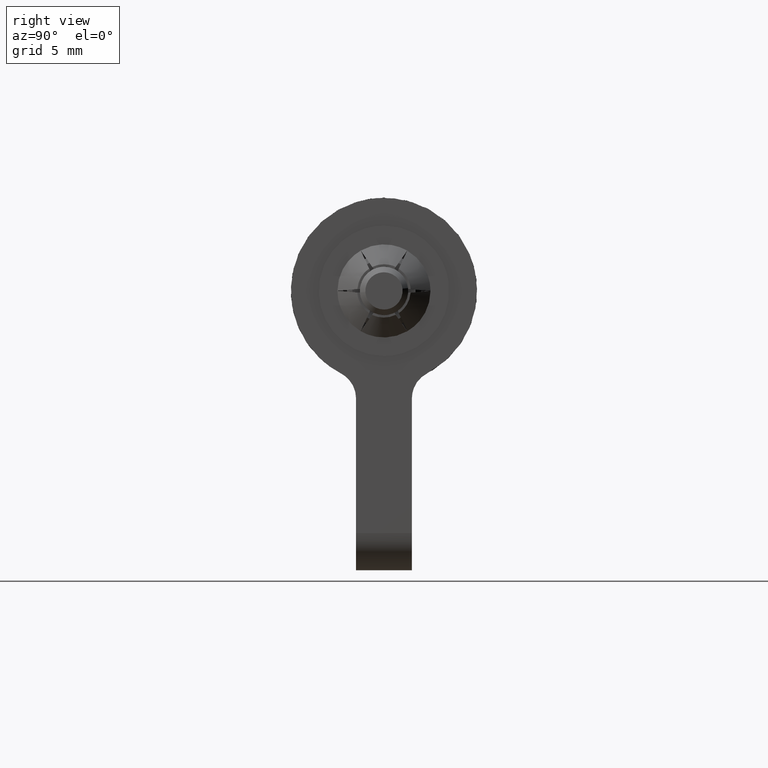
[diagram: clean part render]
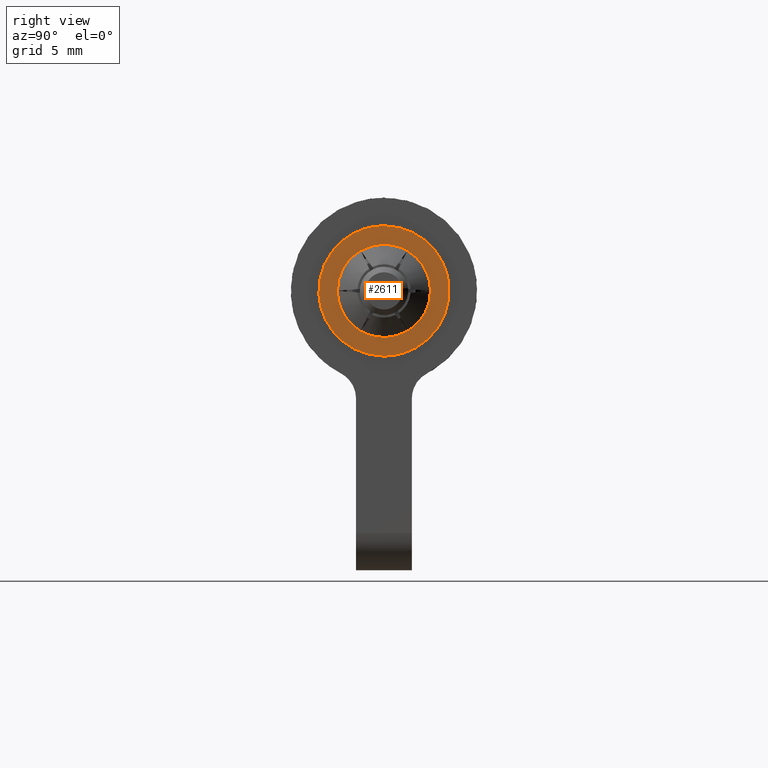
[diagram: same view with one face highlighted and labeled with its STEP entity id]
A machine part, right view. The second image highlights one B-rep face of the part: STEP entity #2611.
In plain terms, the highlighted face is a freeform B-spline surface patch.
Its self-contained STEP definition (entity closure, byte-faithful):
#1333=CARTESIAN_POINT('',(27.750000000000920,3.475533883492339,0.413115268025321));
#1334=VERTEX_POINT('',#1333);
#1335=CARTESIAN_POINT('',(27.750000000000000,0.0,-3.500000000000000));
#1336=VERTEX_POINT('',#1335);
#1337=CARTESIAN_POINT('',(27.750000000000924,3.475533883492339,0.413115268025321));
#1338=CARTESIAN_POINT('',(27.750000000000000,3.500000000000000,0.207282118077154));
#1339=CARTESIAN_POINT('',(27.750000000000000,3.500000000000000,0.0));
#1340=CARTESIAN_POINT('',(27.750000000000011,3.500000000000000,-3.500000000000000));
#1341=CARTESIAN_POINT('',(27.750000000000000,0.0,-3.500000000000000));
#1349=(BOUNDED_CURVE()B_SPLINE_CURVE(2,(#1337,#1338,#1339,#1340,#1341),.UNSPECIFIED.,.F.,.U.)B_SPLINE_CURVE_WITH_KNOTS((3,2,3),(0.229562694925705,0.250000000000000,0.500000000000000),.UNSPECIFIED.)CURVE()GEOMETRIC_REPRESENTATION_ITEM()RATIONAL_B_SPLINE_CURVE((0.956027188161125,0.976056207731668,1.0,0.707106781186547,1.0))REPRESENTATION_ITEM(''));
#1350=EDGE_CURVE('',#1334,#1336,#1349,.T.);
#1352=CARTESIAN_POINT('',(27.750000000000000,-3.493471794475018,-0.213669888396783));
#1353=VERTEX_POINT('',#1352);
#1354=CARTESIAN_POINT('',(27.750000000000000,0.0,-3.500000000000000));
#1355=CARTESIAN_POINT('',(27.750000000000004,-3.292471234123130,-3.500000000000000));
#1356=CARTESIAN_POINT('',(27.750000000000004,-3.493471794475018,-0.213669888396783));
#1364=(BOUNDED_CURVE()B_SPLINE_CURVE(2,(#1354,#1355,#1356),.UNSPECIFIED.,.F.,.U.)B_SPLINE_CURVE_WITH_KNOTS((3,3),(0.500000000000000,0.739332962239520),.UNSPECIFIED.)CURVE()GEOMETRIC_REPRESENTATION_ITEM()RATIONAL_B_SPLINE_CURVE((1.0,0.719603993286034,0.976072041667955))REPRESENTATION_ITEM(''));
#1365=EDGE_CURVE('',#1336,#1353,#1364,.T.);
#1432=CARTESIAN_POINT('',(27.750000000000000,0.0,3.500000000000000));
#1433=VERTEX_POINT('',#1432);
#1434=CARTESIAN_POINT('',(27.750000000000000,0.0,3.500000000000000));
#1435=CARTESIAN_POINT('',(27.749999999999996,3.108614942071727,3.500000000000000));
#1436=CARTESIAN_POINT('',(27.750000000000924,3.475533883492339,0.413115268025321));
#1444=(BOUNDED_CURVE()B_SPLINE_CURVE(2,(#1434,#1435,#1436),.UNSPECIFIED.,.F.,.U.)B_SPLINE_CURVE_WITH_KNOTS((3,3),(0.0,0.229562694925705),.UNSPECIFIED.)CURVE()GEOMETRIC_REPRESENTATION_ITEM()RATIONAL_B_SPLINE_CURVE((1.0,0.731050573454879,0.956027188161125))REPRESENTATION_ITEM(''));
#1445=EDGE_CURVE('',#1433,#1334,#1444,.T.);
#1479=CARTESIAN_POINT('',(27.750000000000011,-3.493471794475019,-0.213669888396783));
#1480=CARTESIAN_POINT('',(27.749999999999996,-3.500000000000000,-0.106934671569915));
#1481=CARTESIAN_POINT('',(27.750000000000000,-3.500000000000000,0.0));
#1482=CARTESIAN_POINT('',(27.750000000000011,-3.500000000000000,3.500000000000000));
#1483=CARTESIAN_POINT('',(27.750000000000000,0.0,3.500000000000000));
#1491=(BOUNDED_CURVE()B_SPLINE_CURVE(2,(#1479,#1480,#1481,#1482,#1483),.UNSPECIFIED.,.F.,.U.)B_SPLINE_CURVE_WITH_KNOTS((3,2,3),(0.739332962239520,0.750000000000000,1.0),.UNSPECIFIED.)CURVE()GEOMETRIC_REPRESENTATION_ITEM()RATIONAL_B_SPLINE_CURVE((0.976072041667955,0.987502787900514,1.0,0.707106781186547,1.0))REPRESENTATION_ITEM(''));
#1492=EDGE_CURVE('',#1353,#1433,#1491,.T.);
#1534=CARTESIAN_POINT('',(27.750000000000000,1.250000254032134,2.165063362795555));
#1535=VERTEX_POINT('',#1534);
#1648=CARTESIAN_POINT('',(27.750000000000000,2.500000000000000,1.530758E-016));
#1649=VERTEX_POINT('',#1648);
#1762=CARTESIAN_POINT('',(27.750000000000000,1.250000000000000,-2.165064000000100));
#1763=VERTEX_POINT('',#1762);
#1876=CARTESIAN_POINT('',(27.750000000000000,-1.250000000000000,-2.165064000000100));
#1877=VERTEX_POINT('',#1876);
#1990=CARTESIAN_POINT('',(27.750000000000000,-2.500000000000000,-1.530758E-016));
#1991=VERTEX_POINT('',#1990);
#2104=CARTESIAN_POINT('',(27.750000000000000,-1.250000000000000,2.165062999999905));
#2105=VERTEX_POINT('',#2104);
#2520=CARTESIAN_POINT('',(27.750000000000000,-3.849564799543584,-3.849649986432642));
#2521=CARTESIAN_POINT('',(27.750000000000000,-3.849564799543584,3.849650174187273));
#2522=CARTESIAN_POINT('',(27.750000000000000,3.849586328741277,-3.849649986432642));
#2523=CARTESIAN_POINT('',(27.750000000000000,3.849586328741277,3.849650174187273));
#2524=B_SPLINE_SURFACE_WITH_KNOTS('',1,1,((#2520,#2522),(#2521,#2523)),.UNSPECIFIED.,.F.,.F.,.U.,(2,2),(2,2),(0.0,7.699300160619915),(0.0,7.699151128284861),.UNSPECIFIED.);
#2525=ORIENTED_EDGE('',*,*,#1492,.F.);
#2526=ORIENTED_EDGE('',*,*,#1365,.F.);
#2527=ORIENTED_EDGE('',*,*,#1350,.F.);
#2528=ORIENTED_EDGE('',*,*,#1445,.F.);
#2529=EDGE_LOOP('',(#2525,#2526,#2527,#2528));
#2530=FACE_OUTER_BOUND('',#2529,.T.);
#2531=CARTESIAN_POINT('',(27.750000000000000,-1.250000000000000,2.165062999999905));
#2532=CARTESIAN_POINT('',(27.749999999999996,0.000000022285957,2.886751528635389));
#2533=CARTESIAN_POINT('',(27.750000000000000,1.250000254032133,2.165063362795557));
#2541=(BOUNDED_CURVE()B_SPLINE_CURVE(2,(#2531,#2532,#2533),.UNSPECIFIED.,.F.,.U.)CURVE()GEOMETRIC_REPRESENTATION_ITEM()QUASI_UNIFORM_CURVE()RATIONAL_B_SPLINE_CURVE((1.0,0.866025348978264,1.0))REPRESENTATION_ITEM(''));
#2542=EDGE_CURVE('',#2105,#1535,#2541,.T.);
#2543=ORIENTED_EDGE('',*,*,#2542,.T.);
#2544=CARTESIAN_POINT('',(27.750000000000000,1.250000254032134,2.165063362795556));
#2545=CARTESIAN_POINT('',(27.749999999999996,2.500000000000000,1.443375477420037));
#2546=CARTESIAN_POINT('',(27.750000000000000,2.500000000000000,0.0));
#2554=(BOUNDED_CURVE()B_SPLINE_CURVE(2,(#2544,#2545,#2546),.UNSPECIFIED.,.F.,.U.)CURVE()GEOMETRIC_REPRESENTATION_ITEM()QUASI_UNIFORM_CURVE()RATIONAL_B_SPLINE_CURVE((1.0,0.866025433117542,1.0))REPRESENTATION_ITEM(''));
#2555=EDGE_CURVE('',#1535,#1649,#2554,.T.);
#2556=ORIENTED_EDGE('',*,*,#2555,.T.);
#2557=CARTESIAN_POINT('',(27.750000000000000,2.500000000000000,0.0));
#2558=CARTESIAN_POINT('',(27.750000000000000,2.500000000000000,-1.443375836487042));
#2559=CARTESIAN_POINT('',(27.750000000000000,1.250000000000000,-2.165064000000100));
#2567=(BOUNDED_CURVE()B_SPLINE_CURVE(2,(#2557,#2558,#2559),.UNSPECIFIED.,.F.,.U.)CURVE()GEOMETRIC_REPRESENTATION_ITEM()QUASI_UNIFORM_CURVE()RATIONAL_B_SPLINE_CURVE((1.0,0.866025379257492,1.0))REPRESENTATION_ITEM(''));
#2568=EDGE_CURVE('',#1649,#1763,#2567,.T.);
#2569=ORIENTED_EDGE('',*,*,#2568,.T.);
#2570=CARTESIAN_POINT('',(27.750000000000000,1.250000000000000,-2.165064000000100));
#2571=CARTESIAN_POINT('',(27.750000000000000,6.505213E-016,-2.886751182435178));
#2572=CARTESIAN_POINT('',(27.750000000000000,-1.250000000000000,-2.165064000000100));
#2580=(BOUNDED_CURVE()B_SPLINE_CURVE(2,(#2570,#2571,#2572),.UNSPECIFIED.,.F.,.U.)CURVE()GEOMETRIC_REPRESENTATION_ITEM()QUASI_UNIFORM_CURVE()RATIONAL_B_SPLINE_CURVE((1.0,0.866025452838327,1.0))REPRESENTATION_ITEM(''));
#2581=EDGE_CURVE('',#1763,#1877,#2580,.T.);
#2582=ORIENTED_EDGE('',*,*,#2581,.T.);
#2583=CARTESIAN_POINT('',(27.750000000000000,-1.250000000000000,-2.165064000000100));
#2584=CARTESIAN_POINT('',(27.750000000000004,-2.500000000000000,-1.443375836487044));
#2585=CARTESIAN_POINT('',(27.750000000000000,-2.500000000000000,0.0));
#2593=(BOUNDED_CURVE()B_SPLINE_CURVE(2,(#2583,#2584,#2585),.UNSPECIFIED.,.F.,.U.)CURVE()GEOMETRIC_REPRESENTATION_ITEM()QUASI_UNIFORM_CURVE()RATIONAL_B_SPLINE_CURVE((1.0,0.866025379257491,1.0))REPRESENTATION_ITEM(''));
#2594=EDGE_CURVE('',#1877,#1991,#2593,.T.);
#2595=ORIENTED_EDGE('',*,*,#2594,.T.);
#2596=CARTESIAN_POINT('',(27.750000000000000,-2.500000000000000,0.0));
#2597=CARTESIAN_POINT('',(27.750000000000004,-2.500000000000000,1.443375503153641));
#2598=CARTESIAN_POINT('',(27.750000000000000,-1.250000000000000,2.165062999999905));
#2606=(BOUNDED_CURVE()B_SPLINE_CURVE(2,(#2596,#2597,#2598),.UNSPECIFIED.,.F.,.U.)CURVE()GEOMETRIC_REPRESENTATION_ITEM()QUASI_UNIFORM_CURVE()RATIONAL_B_SPLINE_CURVE((1.0,0.866025429257502,1.0))REPRESENTATION_ITEM(''));
#2607=EDGE_CURVE('',#1991,#2105,#2606,.T.);
#2608=ORIENTED_EDGE('',*,*,#2607,.T.);
#2609=EDGE_LOOP('',(#2543,#2556,#2569,#2582,#2595,#2608));
#2610=FACE_BOUND('',#2609,.T.);
#2611=ADVANCED_FACE('',(#2530,#2610),#2524,.F.);